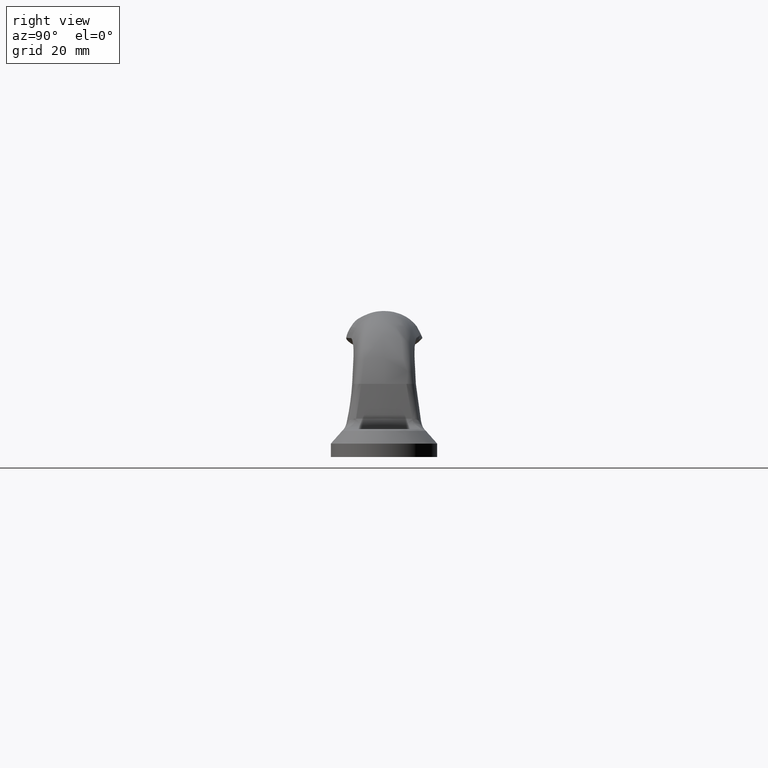
[diagram: clean part render]
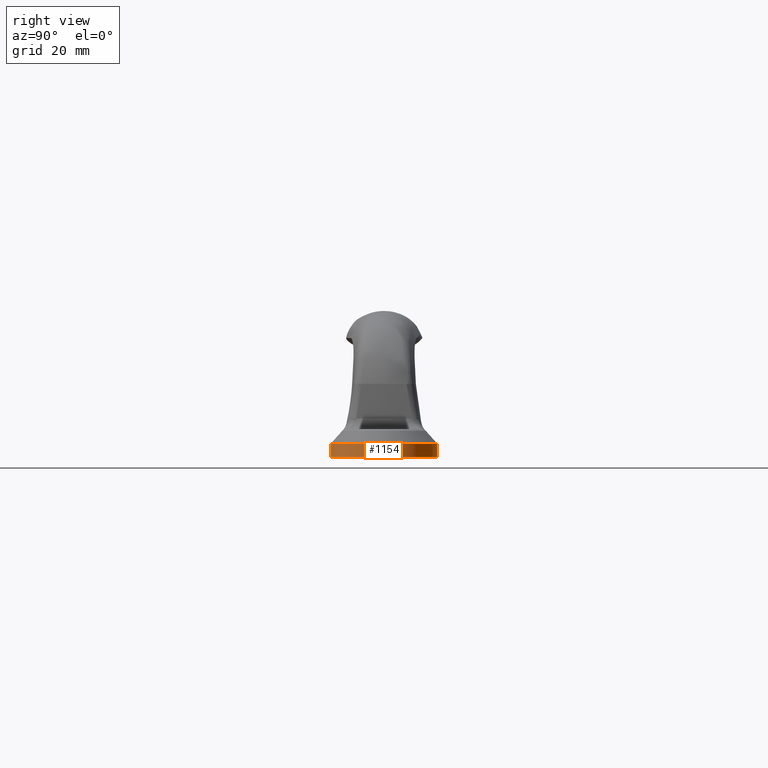
[diagram: same view with one face highlighted and labeled with its STEP entity id]
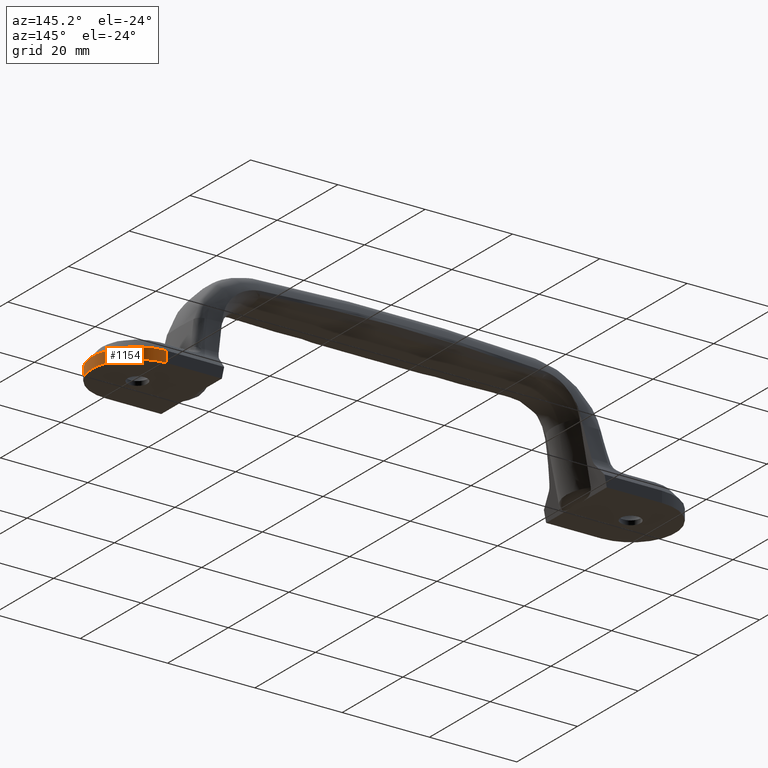
[diagram: same view with one face highlighted and labeled with its STEP entity id]
A machine part, right view. The second image highlights one B-rep face of the part: STEP entity #1154.
A second angle (auxiliary view) of the same face is appended — the face is thin or edge-on in the first view.
In plain terms, the highlighted cylindrical surface (partial cylindrical patch) has radius 10 mm, axis along (0, 0, 1).
Its self-contained STEP definition (entity closure, byte-faithful):
#52=LINE('',#4259,#100);
#56=LINE('',#4266,#104);
#100=VECTOR('',#1289,2.52474003388255);
#104=VECTOR('',#1295,2.52474003388254);
#154=CIRCLE('',#1220,10.);
#155=CIRCLE('',#1221,10.);
#165=CYLINDRICAL_SURFACE('',#1219,10.);
#192=FACE_OUTER_BOUND('',#265,.T.);
#265=EDGE_LOOP('',(#849,#850,#851,#852));
#494=VERTEX_POINT('',#4254);
#495=VERTEX_POINT('',#4258);
#496=VERTEX_POINT('',#4262);
#497=VERTEX_POINT('',#4264);
#630=EDGE_CURVE('',#494,#495,#52,.T.);
#634=EDGE_CURVE('',#496,#497,#56,.T.);
#635=EDGE_CURVE('',#494,#496,#154,.T.);
#636=EDGE_CURVE('',#495,#497,#155,.T.);
#849=ORIENTED_EDGE('',*,*,#635,.T.);
#850=ORIENTED_EDGE('',*,*,#634,.T.);
#851=ORIENTED_EDGE('',*,*,#636,.F.);
#852=ORIENTED_EDGE('',*,*,#630,.F.);
#1154=ADVANCED_FACE('',(#192),#165,.T.);
#1219=AXIS2_PLACEMENT_3D('',#4267,#1296,#1297);
#1220=AXIS2_PLACEMENT_3D('',#4268,#1298,#1299);
#1221=AXIS2_PLACEMENT_3D('',#4269,#1300,#1301);
#1289=DIRECTION('',(0.,0.,-1.));
#1295=DIRECTION('',(0.,0.,-1.));
#1296=DIRECTION('center_axis',(0.,0.,1.));
#1297=DIRECTION('ref_axis',(1.,2.1493917756743E-13,0.));
#1298=DIRECTION('center_axis',(1.1102230246248E-16,5.5511154734021E-17,
-1.));
#1299=DIRECTION('ref_axis',(6.30997449846403E-8,-0.999999999999998,-5.55111512312577E-17));
#1300=DIRECTION('center_axis',(0.,0.,-1.));
#1301=DIRECTION('ref_axis',(3.55271367880049E-15,-1.,0.));
#4254=CARTESIAN_POINT('',(56.7382881227493,10.1196625857388,2.52474003388255));
#4258=CARTESIAN_POINT('',(56.7382881227493,10.1196625857388,0.));
#4259=CARTESIAN_POINT('',(56.7382881227493,10.1196625857388,2.52474003388255));
#4262=CARTESIAN_POINT('',(56.7382881233698,-9.88033741426124,2.52474003388254));
#4264=CARTESIAN_POINT('',(56.7382881227536,-9.88033741426124,0.));
#4266=CARTESIAN_POINT('',(56.7382881227536,-9.88033741426124,2.52474003388253));
#4267=CARTESIAN_POINT('Origin',(56.7382881227536,0.119662585738779,2.6));
#4268=CARTESIAN_POINT('Origin',(56.7382881227536,0.119662585738782,2.52474003388255));
#4269=CARTESIAN_POINT('Origin',(56.7382881227536,0.119662585738785,0.));